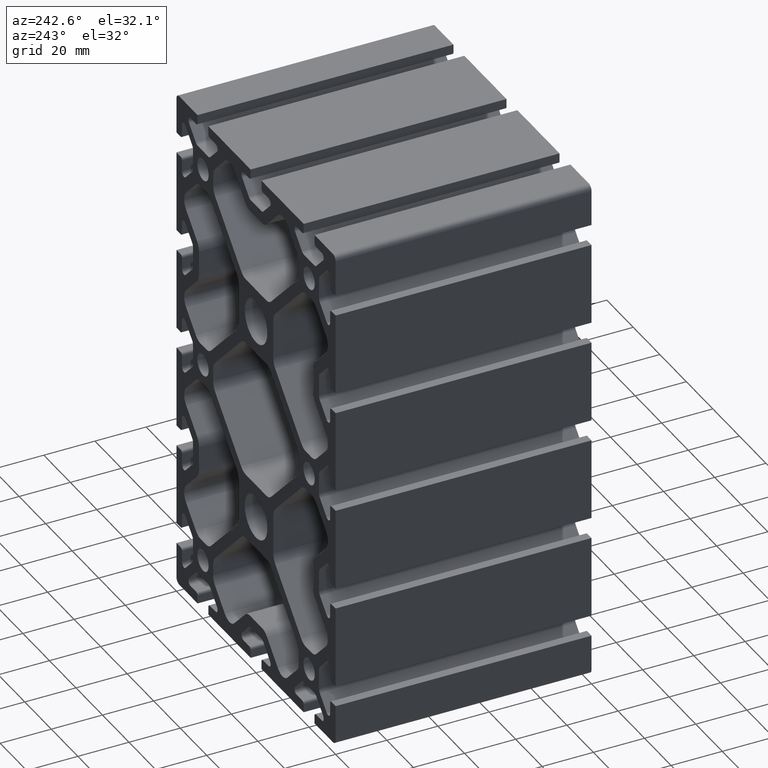
[diagram: clean part render]
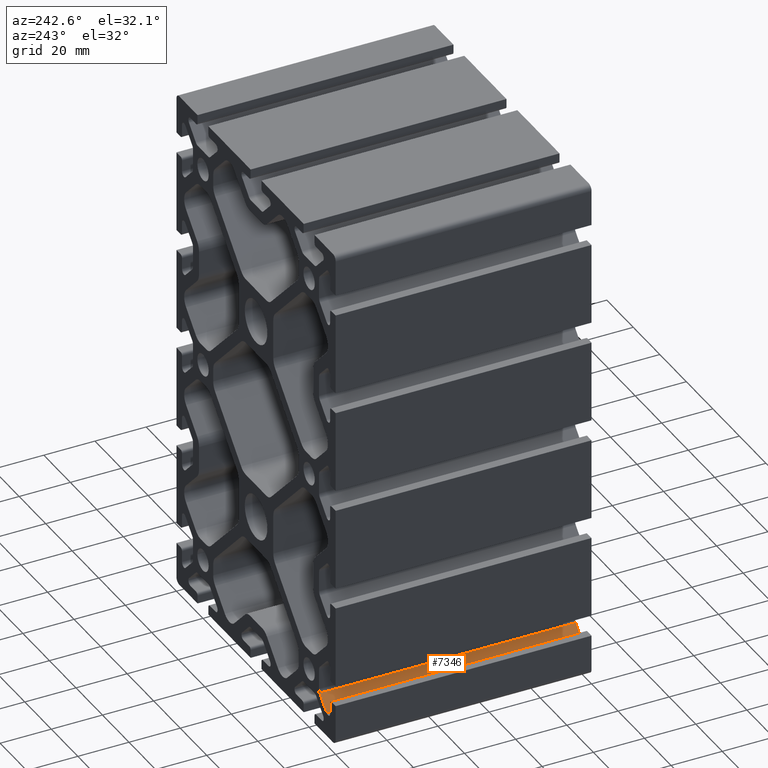
[diagram: same view with one face highlighted and labeled with its STEP entity id]
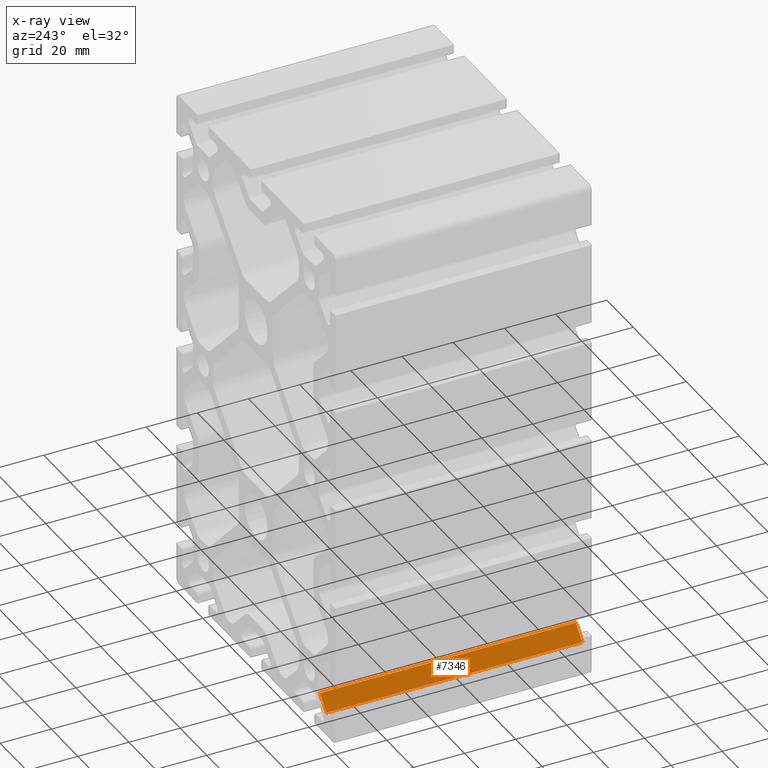
[diagram: x-ray of the same camera — body ghosted, the highlighted face saturated]
A machine part, auxiliary view. The second image highlights one B-rep face of the part: STEP entity #7346.
The next image is the same camera in x-ray: the body ghosted, the highlighted face saturated — about 0% of this face is hidden behind the body in this view.
In plain terms, the highlighted planar face has unit normal (0.7071, 0, -0.7071).
Its self-contained STEP definition (entity closure, byte-faithful):
#256=LINE('',#11297,#1024);
#257=LINE('',#11301,#1025);
#258=LINE('',#11303,#1026);
#259=LINE('',#11304,#1027);
#1024=VECTOR('',#9058,100.);
#1025=VECTOR('',#9063,7.28822509939089);
#1026=VECTOR('',#9064,100.);
#1027=VECTOR('',#9065,7.28822509939089);
#1612=PLANE('',#7846);
#1912=FACE_OUTER_BOUND('',#2295,.T.);
#2295=EDGE_LOOP('',(#5283,#5284,#5285,#5286));
#3185=VERTEX_POINT('',#11294);
#3186=VERTEX_POINT('',#11296);
#3187=VERTEX_POINT('',#11300);
#3188=VERTEX_POINT('',#11302);
#4049=EDGE_CURVE('',#3185,#3186,#256,.T.);
#4051=EDGE_CURVE('',#3187,#3185,#257,.T.);
#4052=EDGE_CURVE('',#3187,#3188,#258,.T.);
#4053=EDGE_CURVE('',#3188,#3186,#259,.T.);
#5283=ORIENTED_EDGE('',*,*,#4051,.F.);
#5284=ORIENTED_EDGE('',*,*,#4052,.T.);
#5285=ORIENTED_EDGE('',*,*,#4053,.T.);
#5286=ORIENTED_EDGE('',*,*,#4049,.F.);
#7346=ADVANCED_FACE('',(#1912),#1612,.F.);
#7846=AXIS2_PLACEMENT_3D('',#11299,#9061,#9062);
#9058=DIRECTION('',(0.,1.,0.));
#9061=DIRECTION('center_axis',(0.707106781186546,0.,-0.707106781186549));
#9062=DIRECTION('ref_axis',(-0.707106781186549,0.,-0.707106781186546));
#9063=DIRECTION('',(-0.707106781186549,0.,-0.707106781186546));
#9064=DIRECTION('',(0.,1.,0.));
#9065=DIRECTION('',(-0.707106781186549,0.,-0.707106781186546));
#11294=CARTESIAN_POINT('',(-53.2393398282204,0.,-90.56066017178));
#11296=CARTESIAN_POINT('',(-53.2393398282204,100.,-90.56066017178));
#11297=CARTESIAN_POINT('',(-53.2393398282204,0.,-90.56066017178));
#11299=CARTESIAN_POINT('Origin',(-48.0857864376271,0.,-85.4071067811867));
#11300=CARTESIAN_POINT('',(-48.0857864376271,0.,-85.4071067811867));
#11301=CARTESIAN_POINT('',(-48.0857864376271,0.,-85.4071067811867));
#11302=CARTESIAN_POINT('',(-48.0857864376271,100.,-85.4071067811867));
#11303=CARTESIAN_POINT('',(-48.0857864376271,0.,-85.4071067811867));
#11304=CARTESIAN_POINT('',(-48.0857864376271,100.,-85.4071067811867));